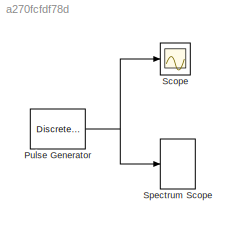
MODEL slx_a270fcfdf78d
KIND model
BLOCK [DiscretePulseGenerator] Pulse Generator
  Amplitude = 3
  Period = 4096
  Ports = [0, 1]
  PulseWidth = 819
  SampleTime = 2.441e-6
BLOCK [Scope] Scope
  DataFormat = StructureWithTime
  Floating = off
  NumInputPorts = 1
  Ports = [1]
  SampleTime = 0
  ShowLegends = off
  YMin = -1
BLOCK [SpectrumAnalyzer] Spectrum Scope
  Ports = [1]
NET Pulse Generator:1 -> Scope:1, Spectrum Scope:1
note: NET lines group one-source signal fan-out (src -> all destinations, sorted); 1:1 wires keep LINE
